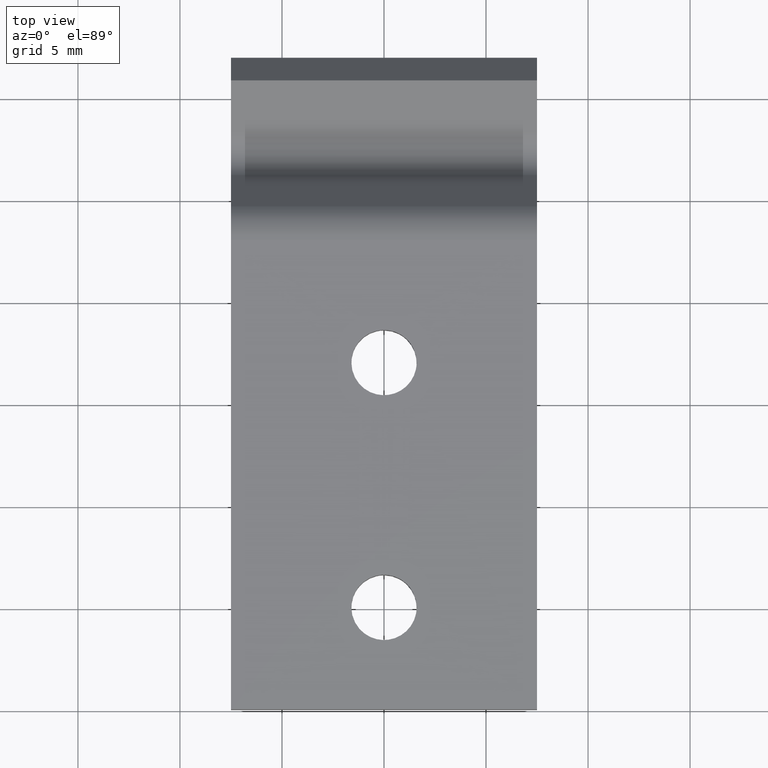
[diagram: clean part render]
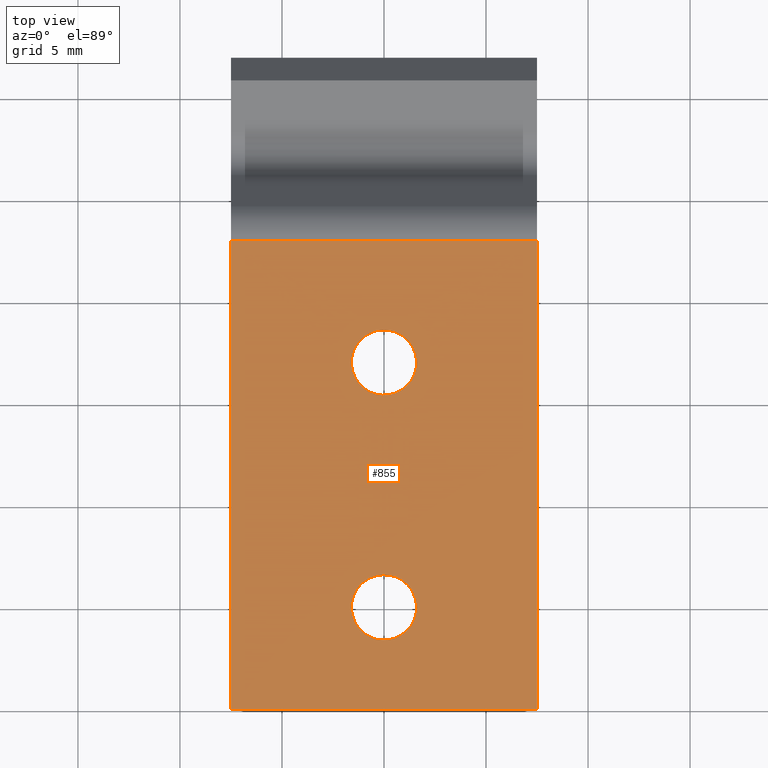
[diagram: same view with one face highlighted and labeled with its STEP entity id]
A machine part, top view. The second image highlights one B-rep face of the part: STEP entity #855.
In plain terms, the highlighted face is a freeform B-spline surface patch.
Its self-contained STEP definition (entity closure, byte-faithful):
#66=CARTESIAN_POINT('',(-1.263056931649046,17.982184904898428,7.661973E-014));
#67=VERTEX_POINT('',#66);
#68=CARTESIAN_POINT('',(-1.600000000000001,17.0,0.0));
#69=VERTEX_POINT('',#68);
#70=CARTESIAN_POINT('',(-1.263056931649047,17.982184904898421,7.661973E-014));
#71=CARTESIAN_POINT('',(-1.600000000000001,17.548887390420436,0.0));
#72=CARTESIAN_POINT('',(-1.600000000000001,17.0,0.0));
#80=(BOUNDED_CURVE()B_SPLINE_CURVE(2,(#70,#71,#72),.UNSPECIFIED.,.F.,.U.)B_SPLINE_CURVE_WITH_KNOTS((3,3),(0.893802338418216,1.0),.UNSPECIFIED.)CURVE()GEOMETRIC_REPRESENTATION_ITEM()RATIONAL_B_SPLINE_CURVE((0.856866860460670,0.875581700275399,1.0))REPRESENTATION_ITEM(''));
#81=EDGE_CURVE('',#67,#69,#80,.T.);
#83=CARTESIAN_POINT('',(1.599999999999999,17.0,0.0));
#84=VERTEX_POINT('',#83);
#85=CARTESIAN_POINT('',(-1.600000000000001,17.0,0.0));
#86=CARTESIAN_POINT('',(-1.600000000000001,15.399999999999997,0.0));
#87=CARTESIAN_POINT('',(-1.223941E-015,15.400000000000000,0.0));
#88=CARTESIAN_POINT('',(1.599999999999998,15.399999999999997,0.0));
#89=CARTESIAN_POINT('',(1.599999999999999,17.0,0.0));
#97=(BOUNDED_CURVE()B_SPLINE_CURVE(2,(#85,#86,#87,#88,#89),.UNSPECIFIED.,.F.,.U.)B_SPLINE_CURVE_WITH_KNOTS((3,2,3),(0.0,0.250000000000000,0.500000000000000),.UNSPECIFIED.)CURVE()GEOMETRIC_REPRESENTATION_ITEM()RATIONAL_B_SPLINE_CURVE((1.0,0.707106781186548,1.0,0.707106781186548,1.0))REPRESENTATION_ITEM(''));
#98=EDGE_CURVE('',#69,#84,#97,.T.);
#100=CARTESIAN_POINT('',(1.121454714115848,18.141200825528671,1.040834E-016));
#101=VERTEX_POINT('',#100);
#102=CARTESIAN_POINT('',(1.599999999999999,17.0,0.0));
#103=CARTESIAN_POINT('',(1.599999999999999,17.670935862118078,0.0));
#104=CARTESIAN_POINT('',(1.121454714115848,18.141200825528667,1.040834E-016));
#112=(BOUNDED_CURVE()B_SPLINE_CURVE(2,(#102,#103,#104),.UNSPECIFIED.,.F.,.U.)B_SPLINE_CURVE_WITH_KNOTS((3,3),(0.500000000000000,0.626316786352934),.UNSPECIFIED.)CURVE()GEOMETRIC_REPRESENTATION_ITEM()RATIONAL_B_SPLINE_CURVE((1.0,0.852010679419672,0.853569641961433))REPRESENTATION_ITEM(''));
#113=EDGE_CURVE('',#84,#101,#112,.T.);
#186=CARTESIAN_POINT('',(1.121454714115848,18.141200825528667,1.040834E-016));
#187=CARTESIAN_POINT('',(0.654577104271281,18.600000000000005,0.0));
#188=CARTESIAN_POINT('',(-1.223941E-015,18.600000000000001,0.0));
#189=CARTESIAN_POINT('',(-0.782628341915235,18.599999999999998,0.0));
#190=CARTESIAN_POINT('',(-1.263056931649046,17.982184904898428,7.661973E-014));
#198=(BOUNDED_CURVE()B_SPLINE_CURVE(2,(#186,#187,#188,#189,#190),.UNSPECIFIED.,.F.,.U.)B_SPLINE_CURVE_WITH_KNOTS((3,2,3),(0.626316786352934,0.750000000000000,0.893802338418216),.UNSPECIFIED.)CURVE()GEOMETRIC_REPRESENTATION_ITEM()RATIONAL_B_SPLINE_CURVE((0.853569641961433,0.855096101766876,1.0,0.831525080911149,0.856866860460671))REPRESENTATION_ITEM(''));
#199=EDGE_CURVE('',#101,#67,#198,.T.);
#256=CARTESIAN_POINT('',(-1.263056931649043,5.982184904898423,7.661973E-014));
#257=VERTEX_POINT('',#256);
#258=CARTESIAN_POINT('',(-1.599999999999999,5.0,0.0));
#259=VERTEX_POINT('',#258);
#260=CARTESIAN_POINT('',(-1.263056931649043,5.982184904898424,7.661973E-014));
#261=CARTESIAN_POINT('',(-1.599999999999999,5.548887390420437,0.0));
#262=CARTESIAN_POINT('',(-1.599999999999999,5.0,0.0));
#270=(BOUNDED_CURVE()B_SPLINE_CURVE(2,(#260,#261,#262),.UNSPECIFIED.,.F.,.U.)B_SPLINE_CURVE_WITH_KNOTS((3,3),(0.893802338418216,1.0),.UNSPECIFIED.)CURVE()GEOMETRIC_REPRESENTATION_ITEM()RATIONAL_B_SPLINE_CURVE((0.856866860460670,0.875581700275399,1.0))REPRESENTATION_ITEM(''));
#271=EDGE_CURVE('',#257,#259,#270,.T.);
#273=CARTESIAN_POINT('',(1.600000000000001,5.0,0.0));
#274=VERTEX_POINT('',#273);
#275=CARTESIAN_POINT('',(-1.599999999999999,5.0,0.0));
#276=CARTESIAN_POINT('',(-1.599999999999998,3.400000000000001,0.0));
#277=CARTESIAN_POINT('',(1.287180E-015,3.400000000000000,0.0));
#278=CARTESIAN_POINT('',(1.600000000000001,3.400000000000001,0.0));
#279=CARTESIAN_POINT('',(1.600000000000001,5.0,0.0));
#287=(BOUNDED_CURVE()B_SPLINE_CURVE(2,(#275,#276,#277,#278,#279),.UNSPECIFIED.,.F.,.U.)B_SPLINE_CURVE_WITH_KNOTS((3,2,3),(0.0,0.250000000000000,0.500000000000000),.UNSPECIFIED.)CURVE()GEOMETRIC_REPRESENTATION_ITEM()RATIONAL_B_SPLINE_CURVE((1.0,0.707106781186548,1.0,0.707106781186548,1.0))REPRESENTATION_ITEM(''));
#288=EDGE_CURVE('',#259,#274,#287,.T.);
#290=CARTESIAN_POINT('',(1.121454714115851,6.141200825528668,1.040834E-016));
#291=VERTEX_POINT('',#290);
#292=CARTESIAN_POINT('',(1.600000000000001,5.0,0.0));
#293=CARTESIAN_POINT('',(1.600000000000001,5.670935862118082,0.0));
#294=CARTESIAN_POINT('',(1.121454714115851,6.141200825528668,1.040834E-016));
#302=(BOUNDED_CURVE()B_SPLINE_CURVE(2,(#292,#293,#294),.UNSPECIFIED.,.F.,.U.)B_SPLINE_CURVE_WITH_KNOTS((3,3),(0.500000000000000,0.626316786352934),.UNSPECIFIED.)CURVE()GEOMETRIC_REPRESENTATION_ITEM()RATIONAL_B_SPLINE_CURVE((1.0,0.852010679419672,0.853569641961433))REPRESENTATION_ITEM(''));
#303=EDGE_CURVE('',#274,#291,#302,.T.);
#376=CARTESIAN_POINT('',(1.121454714115851,6.141200825528668,1.040834E-016));
#377=CARTESIAN_POINT('',(0.654577104271284,6.599999999999999,0.0));
#378=CARTESIAN_POINT('',(1.287180E-015,6.600000000000000,0.0));
#379=CARTESIAN_POINT('',(-0.782628341915233,6.600000000000001,0.0));
#380=CARTESIAN_POINT('',(-1.263056931649043,5.982184904898424,7.661973E-014));
#388=(BOUNDED_CURVE()B_SPLINE_CURVE(2,(#376,#377,#378,#379,#380),.UNSPECIFIED.,.F.,.U.)B_SPLINE_CURVE_WITH_KNOTS((3,2,3),(0.626316786352934,0.750000000000000,0.893802338418216),.UNSPECIFIED.)CURVE()GEOMETRIC_REPRESENTATION_ITEM()RATIONAL_B_SPLINE_CURVE((0.853569641961433,0.855096101766876,1.0,0.831525080911149,0.856866860460670))REPRESENTATION_ITEM(''));
#389=EDGE_CURVE('',#291,#257,#388,.T.);
#431=CARTESIAN_POINT('',(7.500000000000000,23.0,1.408297E-015));
#432=VERTEX_POINT('',#431);
#446=CARTESIAN_POINT('',(7.500000000000000,0.0,0.0));
#447=VERTEX_POINT('',#446);
#448=CARTESIAN_POINT('',(7.500000000000000,23.0,1.408297E-015));
#449=CARTESIAN_POINT('',(7.500000000000000,0.0,0.0));
#450=QUASI_UNIFORM_CURVE('',1,(#448,#449),.UNSPECIFIED.,.F.,.U.);
#451=EDGE_CURVE('',#432,#447,#450,.T.);
#544=CARTESIAN_POINT('',(-7.500000000000000,23.0,1.408297E-015));
#545=VERTEX_POINT('',#544);
#635=CARTESIAN_POINT('',(-7.500000000000000,0.0,0.0));
#636=VERTEX_POINT('',#635);
#642=CARTESIAN_POINT('',(-7.500000000000000,23.0,1.408297E-015));
#643=CARTESIAN_POINT('',(-7.500000000000000,0.0,0.0));
#644=QUASI_UNIFORM_CURVE('',1,(#642,#643),.UNSPECIFIED.,.F.,.U.);
#645=EDGE_CURVE('',#545,#636,#644,.T.);
#818=CARTESIAN_POINT('',(-7.500000000000000,0.0,0.0));
#819=CARTESIAN_POINT('',(7.500000000000000,0.0,0.0));
#820=QUASI_UNIFORM_CURVE('',1,(#818,#819),.UNSPECIFIED.,.F.,.U.);
#821=EDGE_CURVE('',#636,#447,#820,.T.);
#828=CARTESIAN_POINT('',(-8.249249970927087,24.148849955421539,1.408297E-015));
#829=CARTESIAN_POINT('',(-8.249249970927087,-1.148850572329609,1.408297E-015));
#830=CARTESIAN_POINT('',(8.249250373258441,24.148849955421539,1.408297E-015));
#831=CARTESIAN_POINT('',(8.249250373258441,-1.148850572329609,1.408297E-015));
#832=B_SPLINE_SURFACE_WITH_KNOTS('',1,1,((#828,#830),(#829,#831)),.UNSPECIFIED.,.F.,.F.,.U.,(2,2),(2,2),(0.0,25.297700527751150),(0.0,16.498500344185530),.UNSPECIFIED.);
#833=ORIENTED_EDGE('',*,*,#451,.F.);
#834=CARTESIAN_POINT('',(-7.500000000000000,23.0,1.408297E-015));
#835=CARTESIAN_POINT('',(7.500000000000000,23.0,1.408297E-015));
#836=QUASI_UNIFORM_CURVE('',1,(#834,#835),.UNSPECIFIED.,.F.,.U.);
#837=EDGE_CURVE('',#545,#432,#836,.T.);
#838=ORIENTED_EDGE('',*,*,#837,.F.);
#839=ORIENTED_EDGE('',*,*,#645,.T.);
#840=ORIENTED_EDGE('',*,*,#821,.T.);
#841=EDGE_LOOP('',(#833,#838,#839,#840));
#842=FACE_OUTER_BOUND('',#841,.T.);
#843=ORIENTED_EDGE('',*,*,#288,.F.);
#844=ORIENTED_EDGE('',*,*,#271,.F.);
#845=ORIENTED_EDGE('',*,*,#389,.F.);
#846=ORIENTED_EDGE('',*,*,#303,.F.);
#847=EDGE_LOOP('',(#843,#844,#845,#846));
#848=FACE_BOUND('',#847,.T.);
#849=ORIENTED_EDGE('',*,*,#98,.F.);
#850=ORIENTED_EDGE('',*,*,#81,.F.);
#851=ORIENTED_EDGE('',*,*,#199,.F.);
#852=ORIENTED_EDGE('',*,*,#113,.F.);
#853=EDGE_LOOP('',(#849,#850,#851,#852));
#854=FACE_BOUND('',#853,.T.);
#855=ADVANCED_FACE('',(#842,#848,#854),#832,.T.);